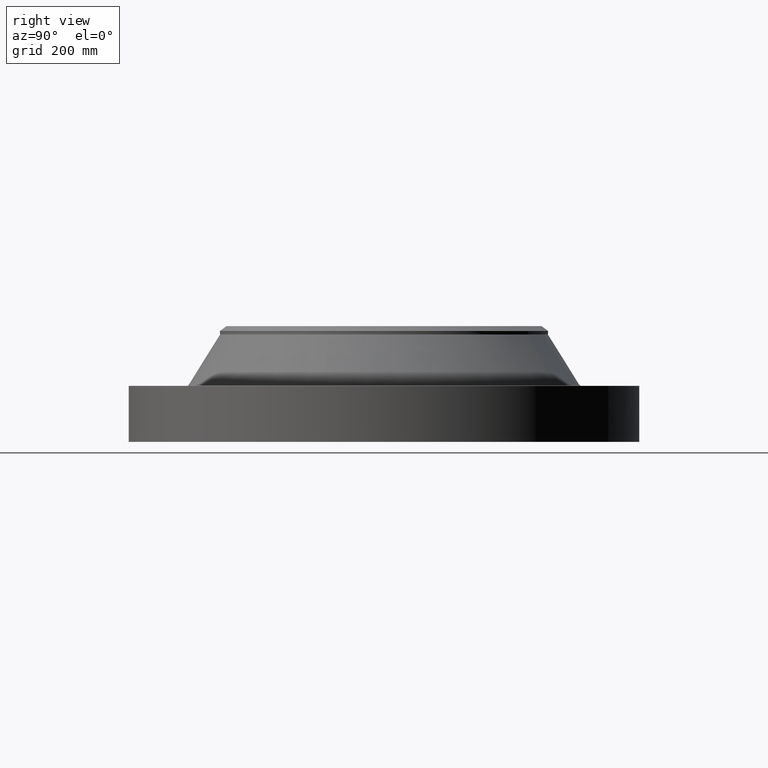
[diagram: clean part render]
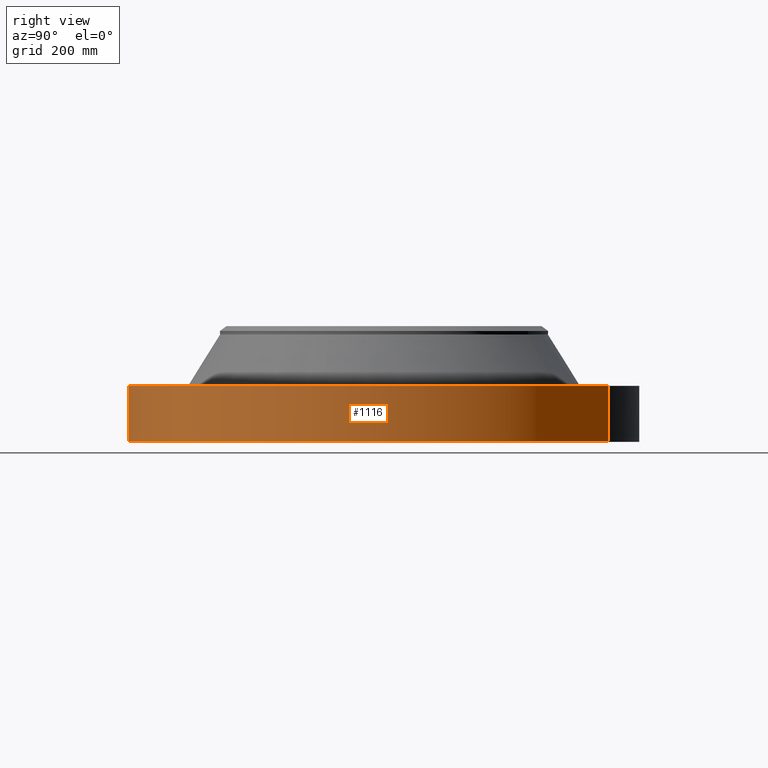
[diagram: same view with one face highlighted and labeled with its STEP entity id]
A machine part, right view. The second image highlights one B-rep face of the part: STEP entity #1116.
In plain terms, the highlighted cylindrical surface (partial cylindrical patch) has radius 434.975 mm, axis along (0, 0, -1).
Its self-contained STEP definition (entity closure, byte-faithful):
#140=AXIS2_PLACEMENT_3D('Circle Axis2P3D',#138,#139,$) ;
#598=AXIS2_PLACEMENT_3D('Circle Axis2P3D',#596,#597,$) ;
#1108=AXIS2_PLACEMENT_3D('Cylinder Axis2P3D',#1105,#1106,#1107) ;
#133=CARTESIAN_POINT('Vertex',(-8.21016234866,-15.0286013725,-9.33440551451E-012)) ;
#135=CARTESIAN_POINT('Vertex',(8.21016234865,15.0286013725,-9.33440551451E-012)) ;
#138=CARTESIAN_POINT('Axis2P3D Location',(1.28188623321E-011,-1.43272270688E-011,0.)) ;
#596=CARTESIAN_POINT('Axis2P3D Location',(1.28188623321E-011,-2.32744707147E-012,3.75000000002)) ;
#600=CARTESIAN_POINT('Vertex',(8.21016234865,15.0286013725,3.74999999999)) ;
#602=CARTESIAN_POINT('Vertex',(-8.21016234865,-15.0286013725,3.74999999999)) ;
#1081=CARTESIAN_POINT('Line Origine',(-8.21016234865,-15.0286013725,1.87499999999)) ;
#1086=CARTESIAN_POINT('Line Origine',(8.21016234865,15.0286013725,1.87499999999)) ;
#1105=CARTESIAN_POINT('Axis2P3D Location',(0.,0.,3.87500000002)) ;
#139=DIRECTION('Axis2P3D Direction',(0.,0.,-0.0393700787402)) ;
#597=DIRECTION('Axis2P3D Direction',(0.,0.,-0.0393700787402)) ;
#1082=DIRECTION('Vector Direction',(0.,0.,-0.0393700787402)) ;
#1087=DIRECTION('Vector Direction',(0.,0.,-0.0393700787402)) ;
#1106=DIRECTION('Axis2P3D Direction',(0.,0.,-0.0393700787402)) ;
#1107=DIRECTION('Axis2P3D XDirection',(0.0188750212049,0.0345504945626,0.)) ;
#1083=VECTOR('Line Direction',#1082,0.0393700787402) ;
#1088=VECTOR('Line Direction',#1087,0.0393700787402) ;
#1111=ORIENTED_EDGE('',*,*,#142,.F.) ;
#1112=ORIENTED_EDGE('',*,*,#1090,.T.) ;
#1113=ORIENTED_EDGE('',*,*,#604,.T.) ;
#1114=ORIENTED_EDGE('',*,*,#1085,.F.) ;
#1116=ADVANCED_FACE('PartBody',(#1115),#1109,.T.) ;
#141=CIRCLE('generated circle',#140,17.1250000001) ;
#599=CIRCLE('generated circle',#598,17.1250000001) ;
#1109=CYLINDRICAL_SURFACE('generated cylinder',#1108,17.1250000001) ;
#142=EDGE_CURVE('',#136,#134,#141,.T.) ;
#604=EDGE_CURVE('',#601,#603,#599,.T.) ;
#1085=EDGE_CURVE('',#134,#603,#1084,.F.) ;
#1090=EDGE_CURVE('',#136,#601,#1089,.F.) ;
#1110=EDGE_LOOP('',(#1111,#1112,#1113,#1114)) ;
#1115=FACE_OUTER_BOUND('',#1110,.T.) ;
#1084=LINE('Line',#1081,#1083) ;
#1089=LINE('Line',#1086,#1088) ;
#134=VERTEX_POINT('',#133) ;
#136=VERTEX_POINT('',#135) ;
#601=VERTEX_POINT('',#600) ;
#603=VERTEX_POINT('',#602) ;